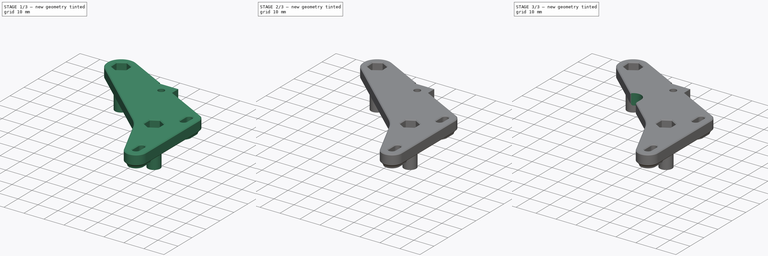
[diagram: build sequence overview — one tinted view per stage of 3, left to right]
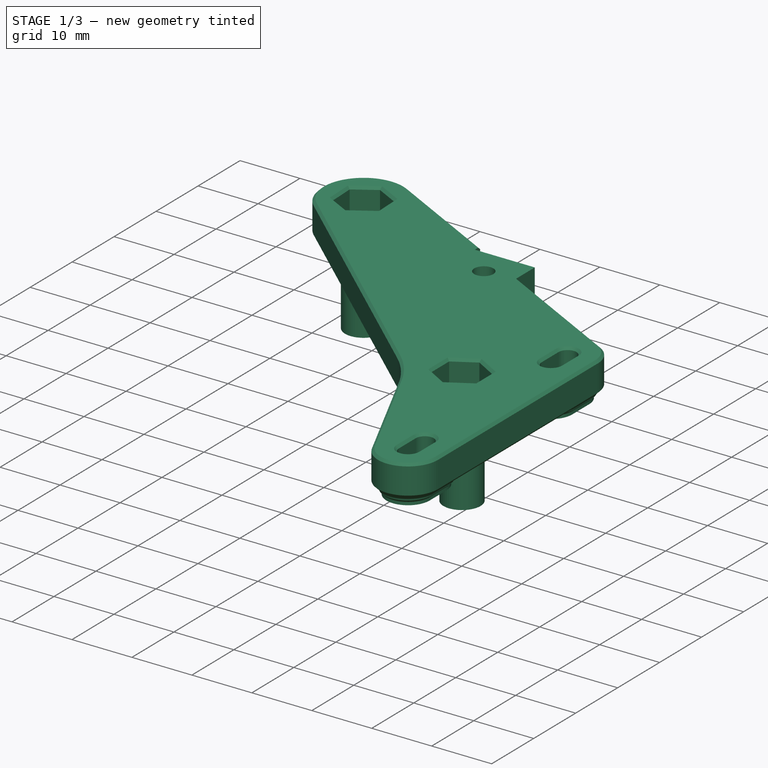
[diagram: stage 1 of 3 — iso view after this stage's code; geometry added in this stage tinted green]
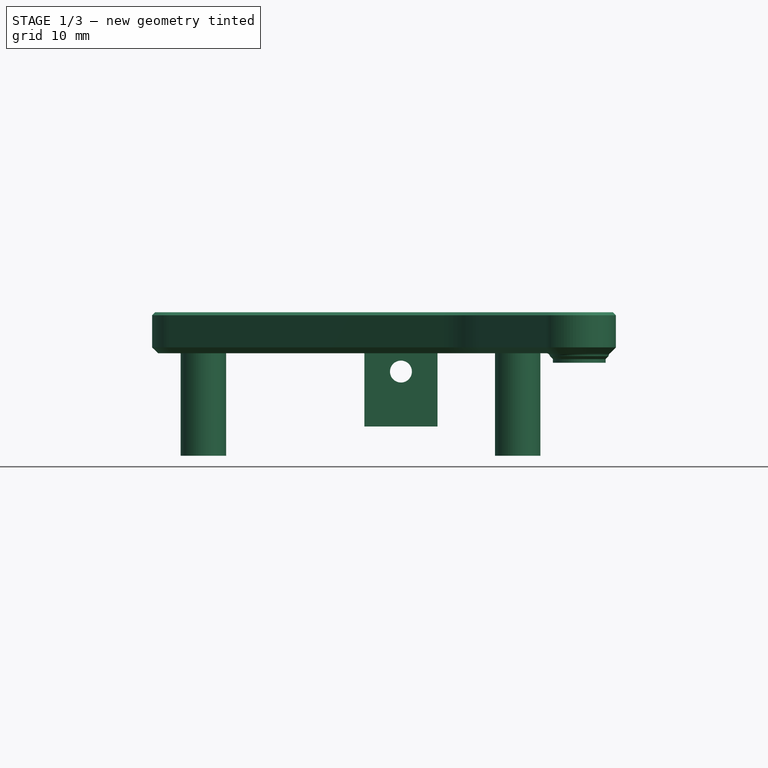
[diagram: stage 1 of 3 — front view after this stage's code; geometry added in this stage tinted green]
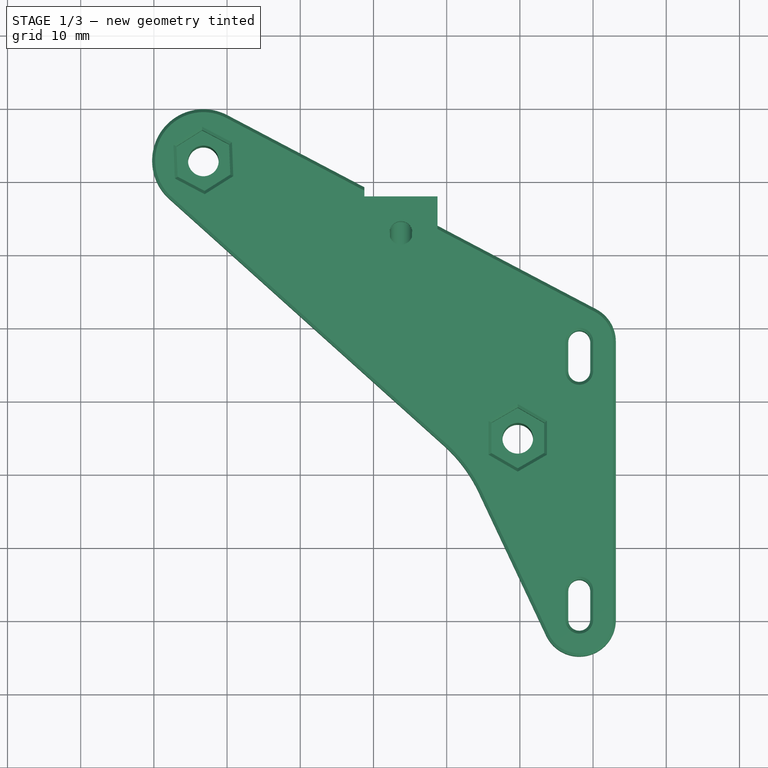
[diagram: stage 1 of 3 — top view after this stage's code; geometry added in this stage tinted green]
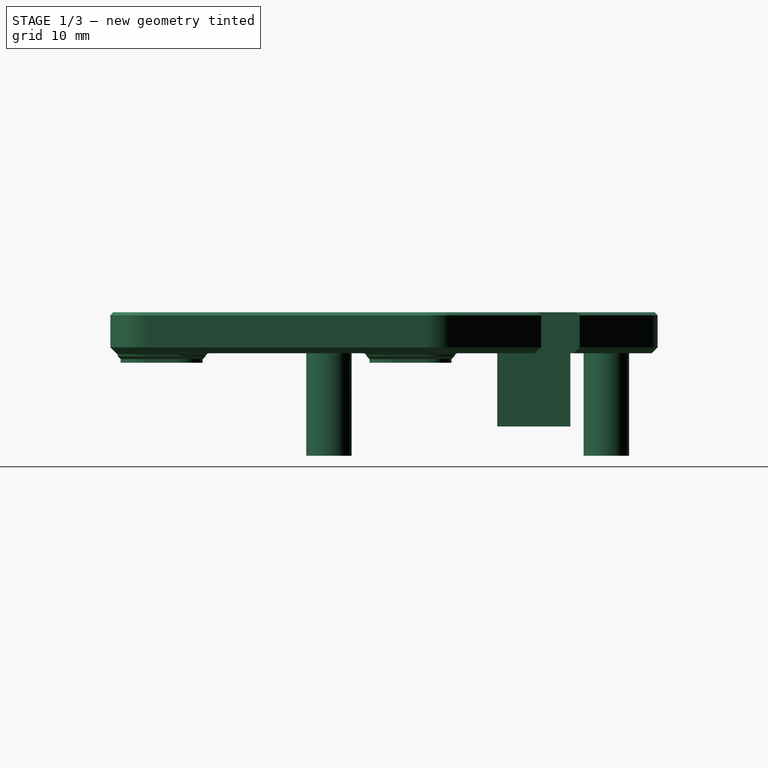
[diagram: stage 1 of 3 — right view after this stage's code; geometry added in this stage tinted green]
FCSTD DOCUMENT  (FreeCAD 2021.911R24301 +3846 (Git))
Label: Duct_Mount_Plate_Left
License: All rights reserved
LicenseURL: http://en.wikipedia.org/wiki/All_rights_reserved
objects: Sketcher::SketchObject×5, PartDesign::Pocket×4, PartDesign::Pad×2, Part::Feature×1, Part::Refine×1, PartDesign::FeatureBase×1, PartDesign::Body×1
note: 28 computed .brp shape members not serialized (recipe doc carries the construction recipe); baked Part::Feature solids carry a one-line shape summary decoded from their .brp

FEATURE [Part::Feature] Duct_Mount_Plate_Left001_solid  label="Duct_Mount_Plate_Left001 (Solid)"
  shape: bbox 63.35 x 74.75 x 19.6 mm, 7478 faces (baked)
FEATURE [Part::Refine] Refined  label="Duct_Mount_Plate_Left001 (Solid)001"
  Source = -> Duct_Mount_Plate_Left001_solid
FEATURE [PartDesign::FeatureBase] BaseFeature
  BaseFeature = -> Refined
  NewSolid = false
  Suppress = false
FEATURE [PartDesign::Pad] Pad
  BaseFeature = -> BaseFeature
  ClaimChildren = false
  Direction = (1,1,1)
  Fit = 0
  FitJoin = 0
  InnerFit = 0
  InnerFitJoin = 0
  InnerTaperAngle = 0
  InnerTaperAngleRev = 0
  Length = 0.5
  Length2 = 100
  Linearize = true
  NewSolid = false
  Profile = -> BaseFeature [Face4352,Face4351]
  Refine = true
  Suppress = false
  Type = 0
  _ProfileBasedVersion = 1
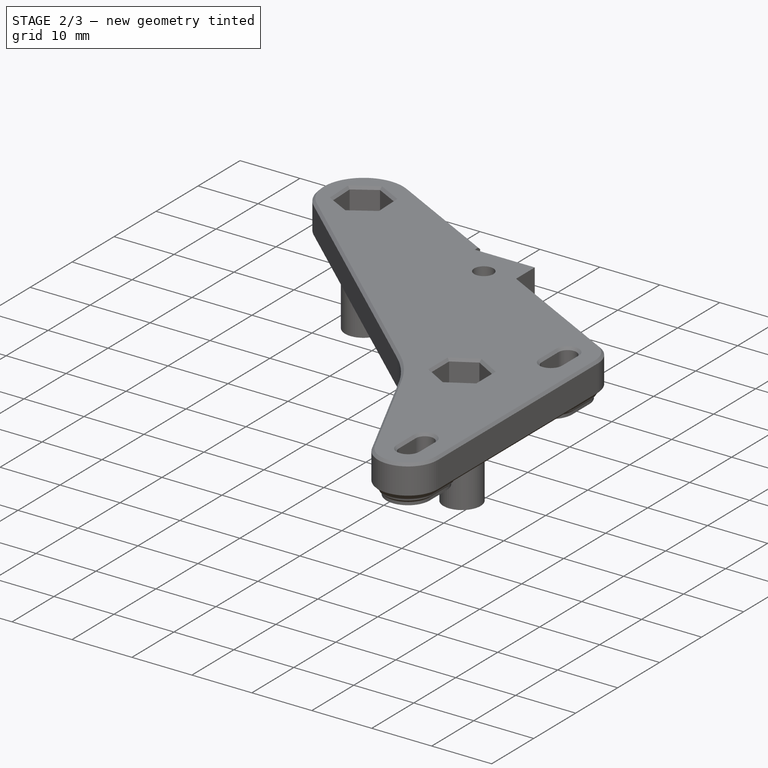
[diagram: stage 2 of 3 — iso view after this stage's code; geometry added in this stage tinted green]
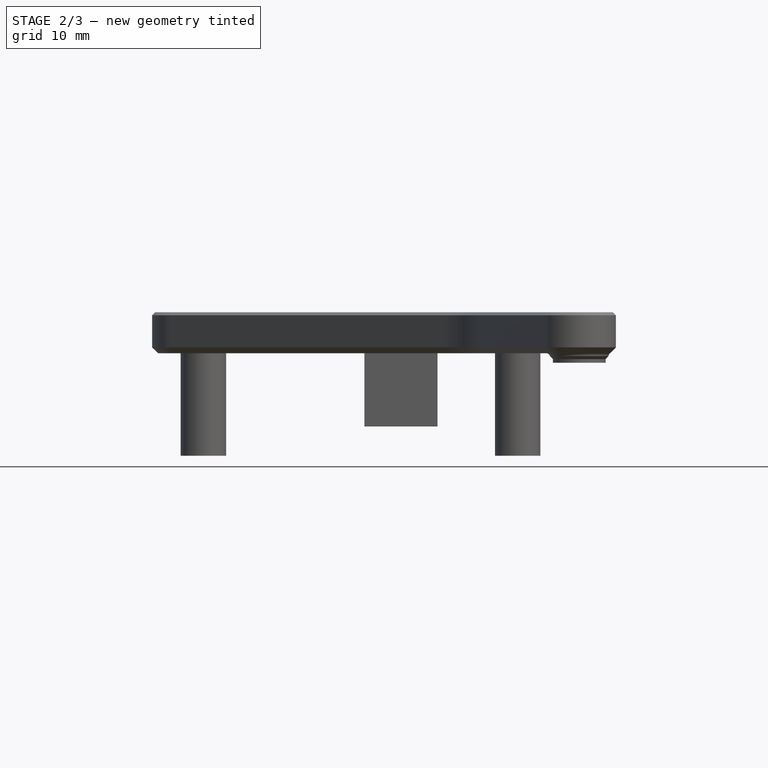
[diagram: stage 2 of 3 — front view after this stage's code; geometry added in this stage tinted green]
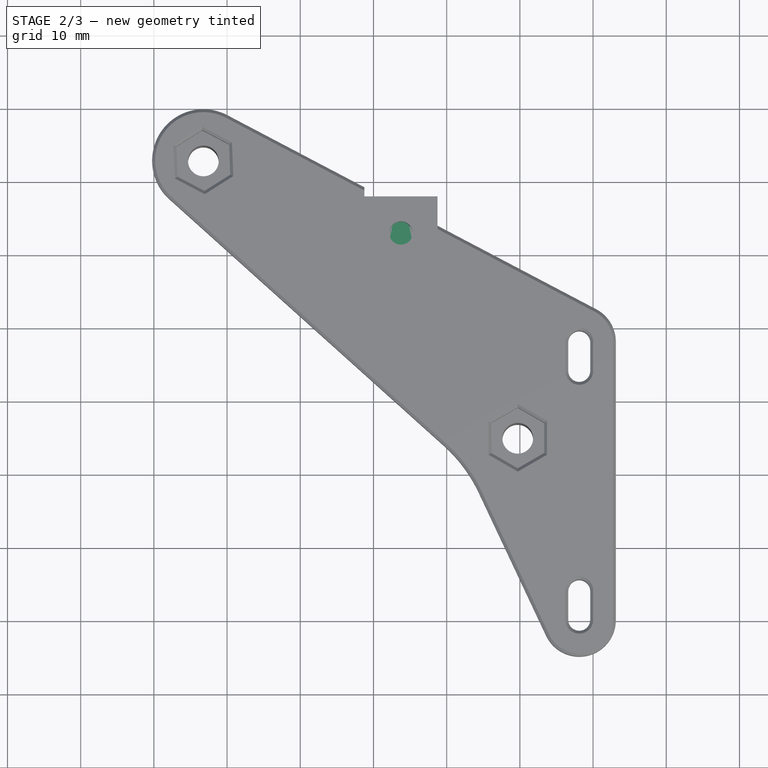
[diagram: stage 2 of 3 — top view after this stage's code; geometry added in this stage tinted green]
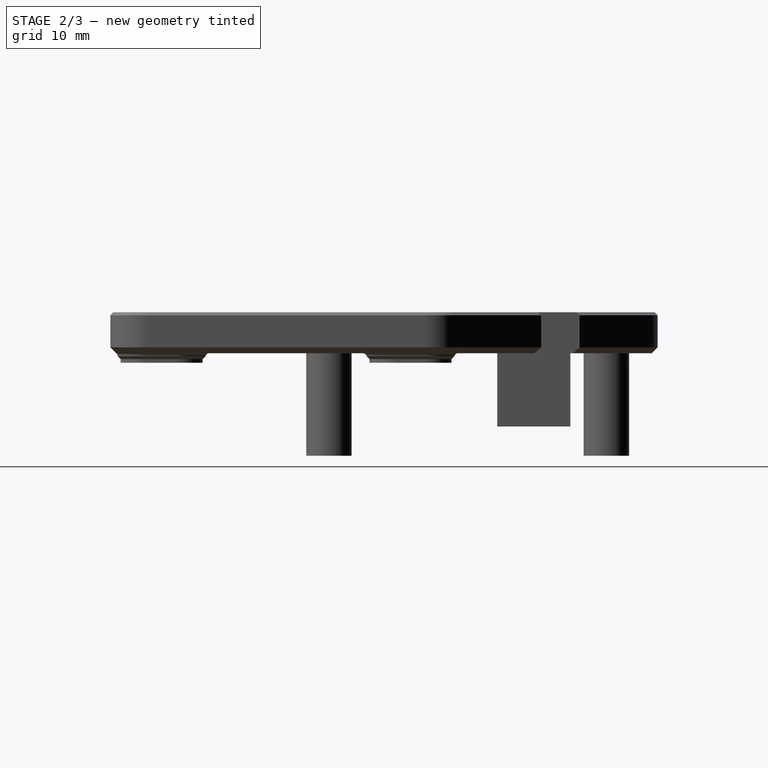
[diagram: stage 2 of 3 — right view after this stage's code; geometry added in this stage tinted green]
FEATURE [Sketcher::SketchObject] Sketch
  ExternalGeometry = -> [Pad]
  FullyConstrained = true
  MapMode = 5
  Placement = pos=(0,437.746,0) rot=(0,0.707107,0.707107;3.14159rad)
  Support = -> [Pad]
  sketch-geometry (4):
    g0: LineSegment StartX=-136.985 StartY=-107.6 StartZ=0 EndX=-130.519 EndY=-107.6 EndZ=0
    g1: LineSegment StartX=-130.519 StartY=-107.6 StartZ=0 EndX=-130.519 EndY=-115.199 EndZ=0
    g2: LineSegment StartX=-130.519 StartY=-115.199 StartZ=0 EndX=-136.985 EndY=-115.199 EndZ=0
    g3: LineSegment StartX=-136.985 StartY=-115.199 StartZ=0 EndX=-136.985 EndY=-107.6 EndZ=0
  constraints (10):
    c: Coincident(g0,g1)
    c: Coincident(g1,g2)
    c: Coincident(g2,g3)
    c: Coincident(g3,g0)
    c: Vertical(g1)
    c: Vertical(g3)
    c: Coincident(g0,g-3)
    c: Coincident(g0,g-3)
    c: DistanceY(g1,g-4) = 1
    c: Horizontal(g2)
FEATURE [PartDesign::Pad] Pad001
  BaseFeature = -> Pad
  ClaimChildren = false
  Direction = (1,1,1)
  Fit = 0
  FitJoin = 0
  InnerFit = 0
  InnerFitJoin = 0
  InnerTaperAngle = 0
  InnerTaperAngleRev = 0
  Length = 10
  Length2 = 100
  Linearize = true
  NewSolid = false
  Profile = -> Sketch
  Refine = true
  Reversed = true
  Suppress = false
  Type = 0
  _ProfileBasedVersion = 1
FEATURE [Sketcher::SketchObject] Sketch001
  ExternalGeometry = -> [Pad]
  FullyConstrained = true
  MapMode = 5
  Placement = pos=(0,437.746,0) rot=(0,0.707107,0.707107;3.14159rad)
  Support = -> [Pad001]
  sketch-geometry (4):
    g0: LineSegment StartX=-136.985 StartY=-107.6 StartZ=0 EndX=-130.519 EndY=-107.6 EndZ=0
    g1: LineSegment StartX=-130.519 StartY=-107.6 StartZ=0 EndX=-130.519 EndY=-110.1 EndZ=0
    g2: LineSegment StartX=-130.519 StartY=-110.1 StartZ=0 EndX=-136.985 EndY=-110.1 EndZ=0
    g3: LineSegment StartX=-136.985 StartY=-110.1 StartZ=0 EndX=-136.985 EndY=-107.6 EndZ=0
  constraints (10):
    c: Coincident(g0,g1)
    c: Coincident(g1,g2)
    c: Coincident(g2,g3)
    c: Coincident(g3,g0)
    c: Horizontal(g2)
    c: Vertical(g1)
    c: Vertical(g3)
    c: Coincident(g0,g-3)
    c: Coincident(g0,g-3)
    c: DistanceY(g1,g1) = 2.5
FEATURE [PartDesign::Pocket] Pocket
  BaseFeature = -> Pad001
  ClaimChildren = false
  Fit = 0
  FitJoin = 0
  InnerFit = 0
  InnerFitJoin = 0
  InnerTaperAngle = 0
  InnerTaperAngleRev = 0
  Length = 8
  Length2 = 100
  Linearize = true
  NewSolid = false
  Profile = -> Sketch001
  Refine = true
  Suppress = false
  Type = 0
  _ProfileBasedVersion = 1
FEATURE [Sketcher::SketchObject] Sketch002
  ExternalGeometry = -> [Pocket]
  FullyConstrained = true
  MapMode = 5
  Placement = pos=(0,0,-104.6) rot=(0,0,1;0rad)
  Support = -> [Pocket]
  sketch-geometry (1):
    g0: Circle CenterX=133.752 CenterY=432.746 CenterZ=0 NormalX=0 NormalY=0 NormalZ=1 AngleXU=0 Radius=1.6
  constraints (3):
    c: PointOnObject(g-3,g0)
    c: PointOnObject(g-4,g0)
    c: PointOnObject(g-5,g0)
FEATURE [PartDesign::Pocket] Pocket001
  BaseFeature = -> Pocket
  ClaimChildren = false
  Fit = 0
  FitJoin = 0
  InnerFit = 0
  InnerFitJoin = 0
  InnerTaperAngle = 0
  InnerTaperAngleRev = 0
  Length = 6.5
  Length2 = 100
  Linearize = true
  NewSolid = false
  Profile = -> Sketch002
  Refine = true
  Suppress = false
  Type = 0
  _ProfileBasedVersion = 1
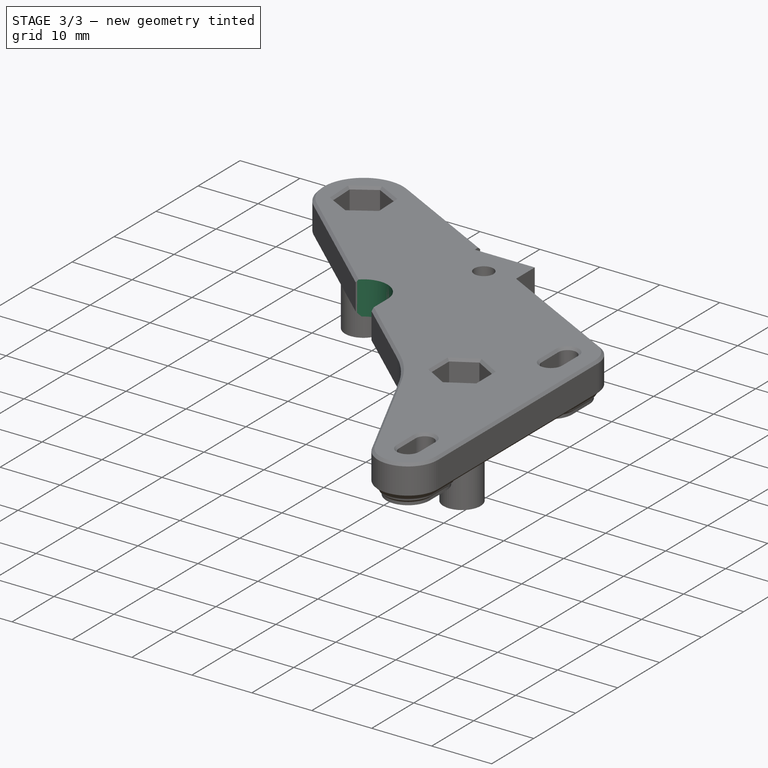
[diagram: stage 3 of 3 — iso view after this stage's code; geometry added in this stage tinted green]
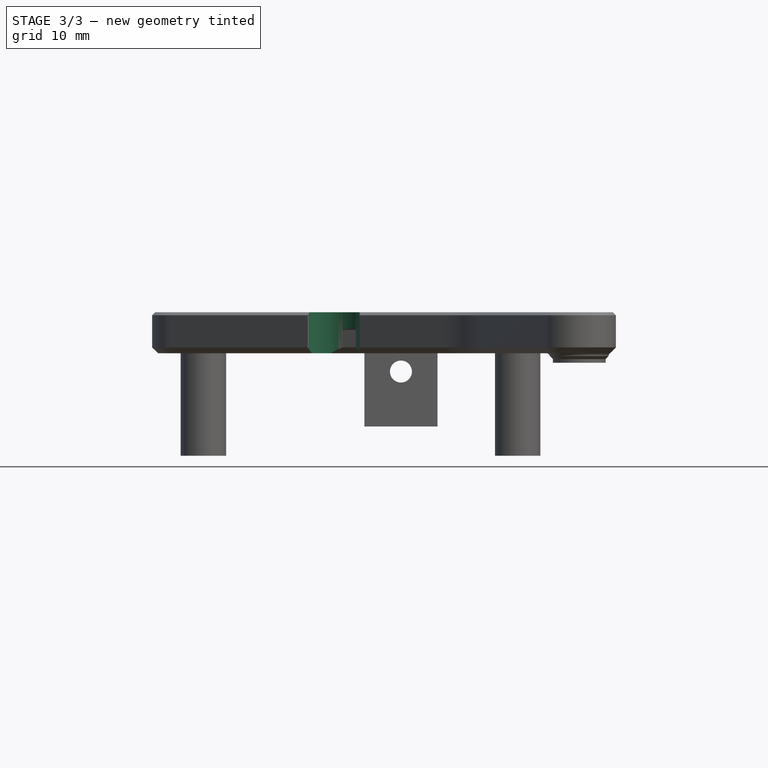
[diagram: stage 3 of 3 — front view after this stage's code; geometry added in this stage tinted green]
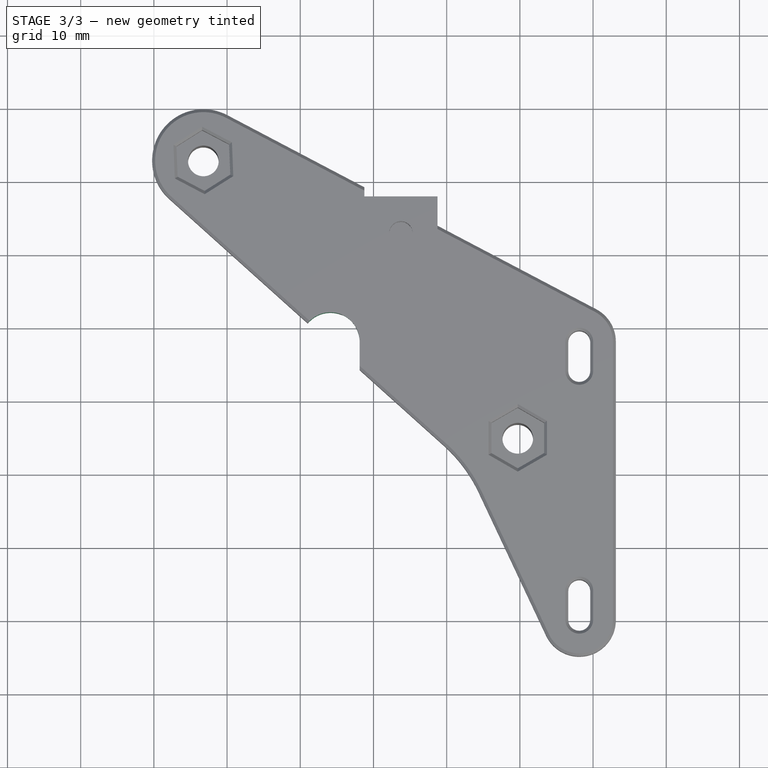
[diagram: stage 3 of 3 — top view after this stage's code; geometry added in this stage tinted green]
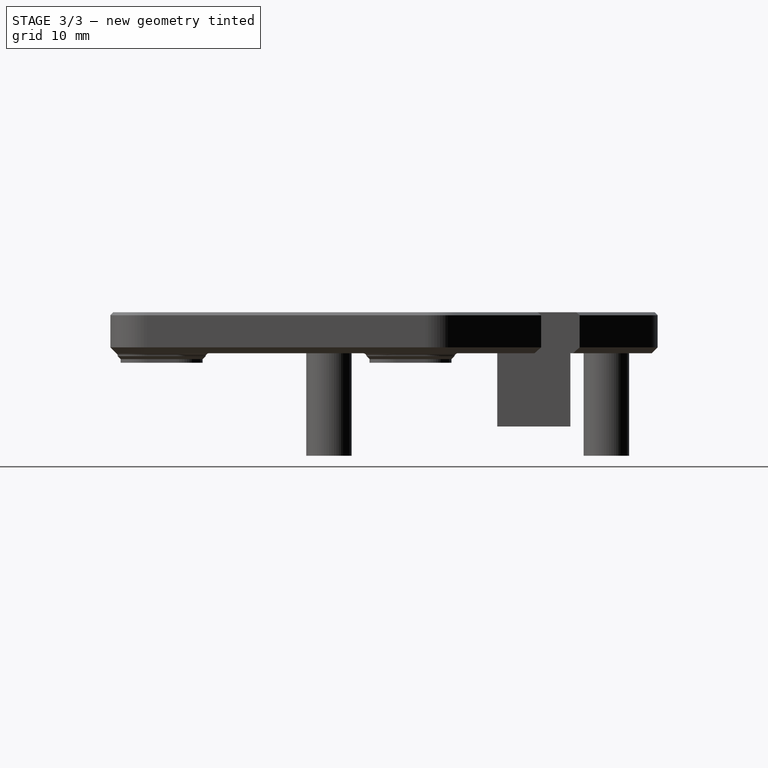
[diagram: stage 3 of 3 — right view after this stage's code; geometry added in this stage tinted green]
FEATURE [Sketcher::SketchObject] Sketch003
  ExternalGeometry = -> [Pad]
  FullyConstrained = true
  MapMode = 5
  Placement = pos=(0,437.746,0) rot=(0,0.707107,0.707107;3.14159rad)
  Support = -> [Pad001]
  sketch-geometry (1):
    g0: Circle CenterX=-133.752 CenterY=-112.7 CenterZ=0 NormalX=0 NormalY=0 NormalZ=1 AngleXU=0 Radius=1.5
  constraints (3):
    c: PointOnObject(g-3,g0)
    c: PointOnObject(g-5,g0)
    c: PointOnObject(g-4,g0)
FEATURE [PartDesign::Pocket] Pocket002
  BaseFeature = -> Pocket001
  ClaimChildren = false
  Fit = 0
  FitJoin = 0
  InnerFit = 0
  InnerFitJoin = 0
  InnerTaperAngle = 0
  InnerTaperAngleRev = 0
  Length = 5
  Length2 = 100
  Linearize = true
  NewSolid = false
  Profile = -> Sketch003
  Refine = true
  Suppress = false
  Type = 1
  _ProfileBasedVersion = 1
FEATURE [Sketcher::SketchObject] Sketch004
  AttachmentOffset = pos=(0,0,0) rot=(0,0,1;3.14159rad)
  ExternalGeometry = -> [Pocket002]
  FullyConstrained = true
  MapMode = 5
  Placement = pos=(0,0,-110.2) rot=(0,-1,0;3.14159rad)
  Support = -> [Pocket002]
  sketch-geometry (6):
    g0: Circle [constr] CenterX=-158.112 CenterY=417.899 CenterZ=0 NormalX=0 NormalY=0 NormalZ=1 AngleXU=0 Radius=1.5
    g1: ArcOfCircle CenterX=-124.112 CenterY=417.899 CenterZ=0 NormalX=0 NormalY=0 NormalZ=1 AngleXU=0 Radius=4 StartAngle=0 EndAngle=3.14159
    g2: Circle [constr] CenterX=-158.112 CenterY=383.899 CenterZ=0 NormalX=0 NormalY=0 NormalZ=1 AngleXU=0 Radius=1.5
    g3: LineSegment StartX=-128.112 StartY=417.899 StartZ=0 EndX=-128.112 EndY=411.899 EndZ=0
    g4: LineSegment StartX=-128.112 StartY=411.899 StartZ=0 EndX=-120.112 EndY=411.899 EndZ=0
    g5: LineSegment StartX=-120.112 StartY=411.899 StartZ=0 EndX=-120.112 EndY=417.899 EndZ=0
  constraints (21):
    c: PointOnObject(g-3,g0)
    c: PointOnObject(g-4,g0)
    c: PointOnObject(g-5,g0)
    c: DistanceX(g-5,g-6) = 2.10001
    c: Horizontal(g1,g1)
    c: Horizontal(g1,g1)
    c: Horizontal(g0,g1)
    c: PointOnObject(g-7,g2)
    c: PointOnObject(g-9,g2)
    c: PointOnObject(g-8,g2)
    c: DistanceY(g2,g0) = 34
    c: DistanceX(g0,g1) = 34
    c: Diameter(g1) = 8
    c: Coincident(g3,g1)
    c: Vertical(g3)
    c: Coincident(g4,g3)
    c: Horizontal(g4)
    c: Coincident(g5,g4)
    c: Coincident(g5,g1)
    c: Vertical(g5)
    c: DistanceY(g3,g3) = 6
FEATURE [PartDesign::Pocket] Pocket003
  BaseFeature = -> Pocket002
  ClaimChildren = false
  Fit = 0
  FitJoin = 0
  InnerFit = 0
  InnerFitJoin = 0
  InnerTaperAngle = 0
  InnerTaperAngleRev = 0
  Length = 5
  Length2 = 100
  Linearize = true
  NewSolid = false
  Profile = -> Sketch004
  Refine = true
  Suppress = false
  Type = 1
  _ProfileBasedVersion = 1
FEATURE [PartDesign::Body] Body  label="Duct_Mount_Plate_Left"
  AutoGroupSolids = false
  BaseFeature = -> Refined
  ExportMode = 0
  Group = -> [BaseFeature,Pad,Sketch,Pad001,Sketch001,Sketch003,Pocket,Sketch002,Pocket001,Pocket002,Sketch004,Pocket003]
  Origin = -> Origin
  Tip = -> Pocket003
  _ExportChildren = -> [BaseFeature,Pad,Pad001,Pocket,Pocket001,Pocket002,Pocket003]
  _GroupVersion = 1
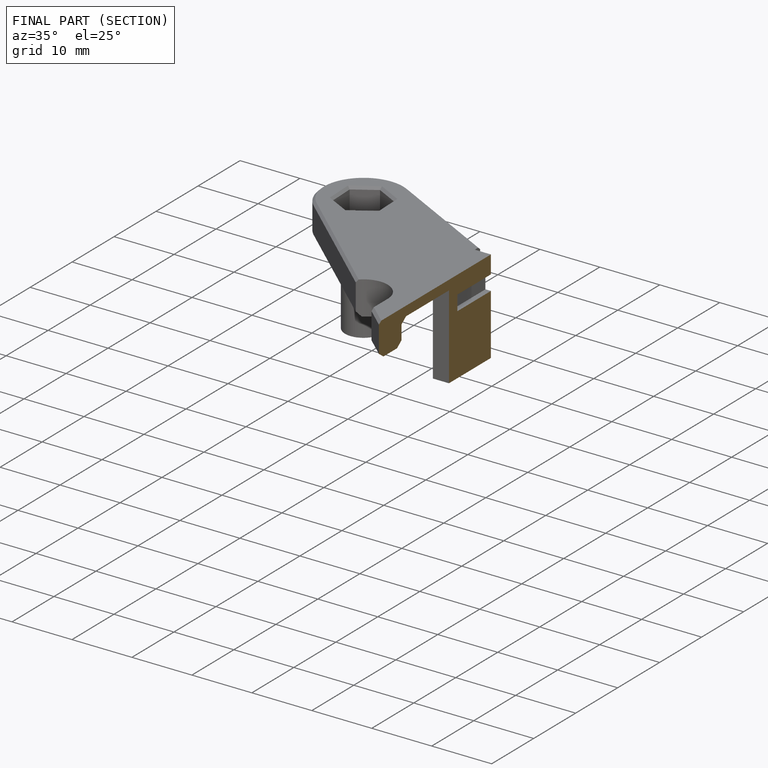
[diagram: finished part — half-section view (interior)]
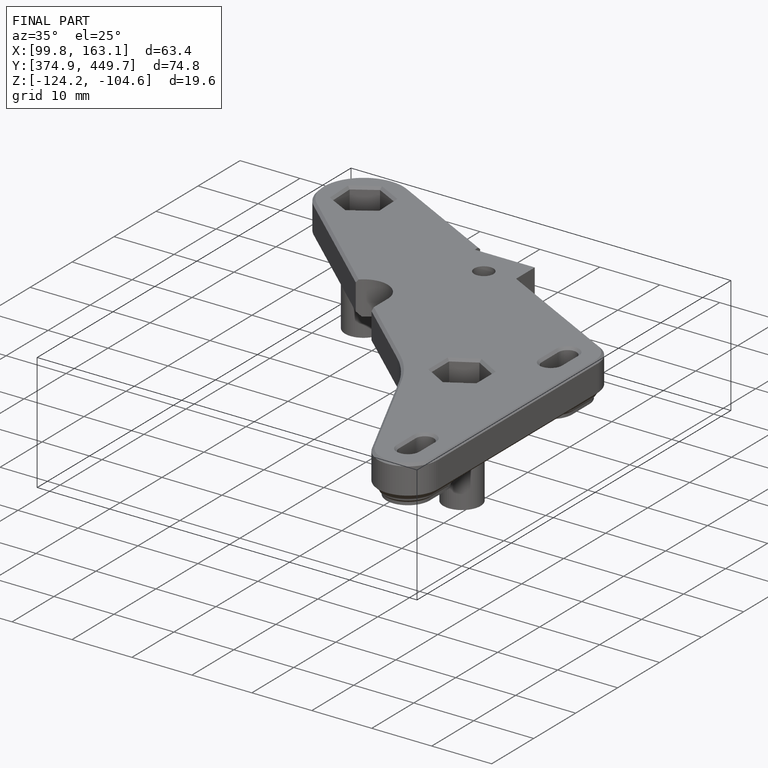
[diagram: finished part — iso view with bounding-box wireframe]
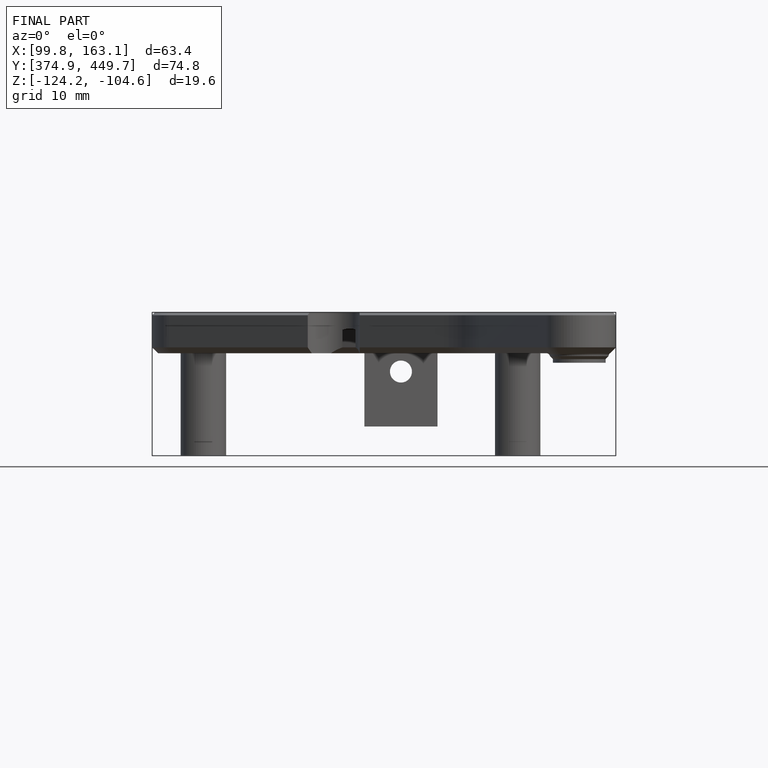
[diagram: finished part — front view with bounding-box wireframe]
